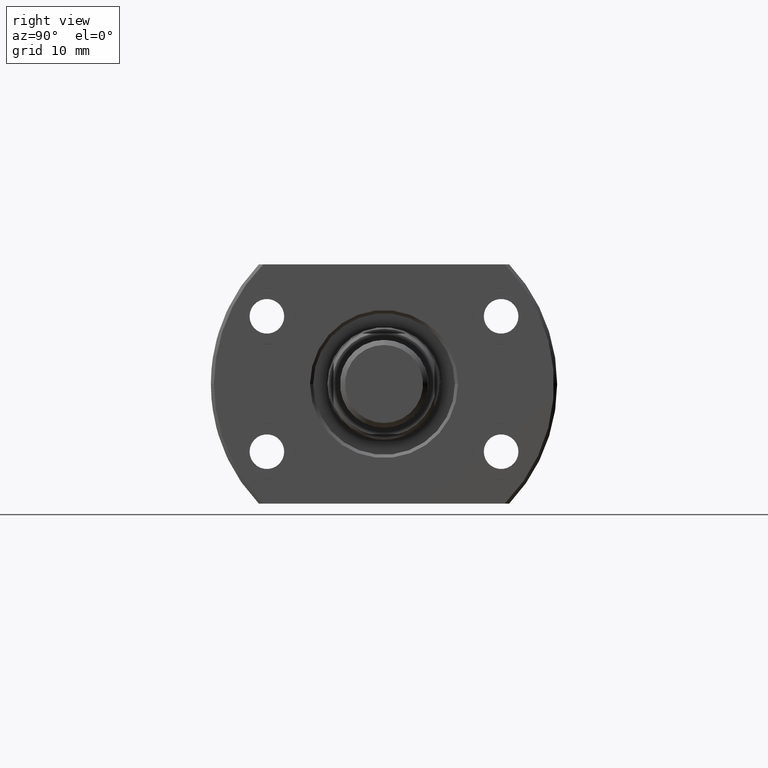
[diagram: clean part render]
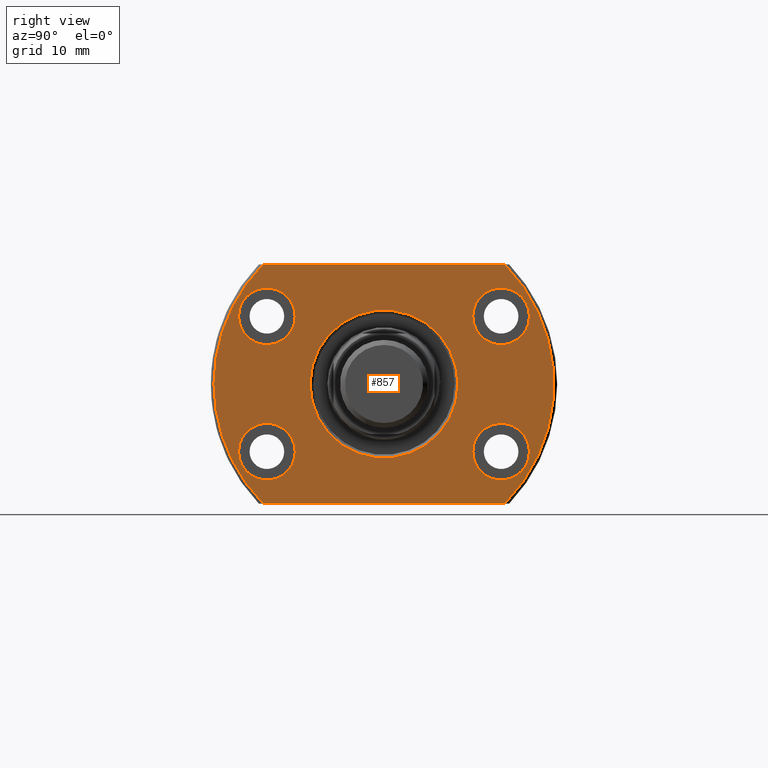
[diagram: same view with one face highlighted and labeled with its STEP entity id]
A machine part, right view. The second image highlights one B-rep face of the part: STEP entity #857.
In plain terms, the highlighted planar face has unit normal (-1, -0, 0).
Its self-contained STEP definition (entity closure, byte-faithful):
#32 = CIRCLE ( 'NONE', #3603, 4.500000000000000888 ) ;
#37 = DIRECTION ( 'NONE',  ( 2.852656382717415620E-14, 1.000000000000000000, 0.000000000000000000 ) ) ;
#46 = AXIS2_PLACEMENT_3D ( 'NONE', #2691, #2375, #2734 ) ;
#199 = EDGE_CURVE ( 'NONE', #1475, #2545, #3670, .T. ) ;
#209 = FACE_OUTER_BOUND ( 'NONE', #599, .T. ) ;
#254 = EDGE_CURVE ( 'NONE', #587, #2266, #32, .T. ) ;
#264 = DIRECTION ( 'NONE',  ( 1.000000000000000000, -2.883293662278287419E-14, -3.155443620884046521E-30 ) ) ;
#310 = DIRECTION ( 'NONE',  ( -1.000000000000000000, -9.242617352055502386E-18, 0.000000000000000000 ) ) ;
#329 = DIRECTION ( 'NONE',  ( 1.000000000000000000, -2.883293662278287419E-14, -3.155443620884046521E-30 ) ) ;
#341 = AXIS2_PLACEMENT_3D ( 'NONE', #3655, #310, #1449 ) ;
#345 = AXIS2_PLACEMENT_3D ( 'NONE', #845, #1117, #860 ) ;
#361 = ORIENTED_EDGE ( 'NONE', *, *, #1987, .T. ) ;
#366 = CARTESIAN_POINT ( 'NONE',  ( 26.50000000000041211, 14.09999999999923403, 10.75000000000000000 ) ) ;
#367 = CARTESIAN_POINT ( 'NONE',  ( 26.50000000000054001, 18.59999999999923403, -10.75000000000000000 ) ) ;
#377 = DIRECTION ( 'NONE',  ( 1.000000000000000000, -2.886466111666351885E-14, 0.000000000000000000 ) ) ;
#491 = FACE_BOUND ( 'NONE', #1496, .T. ) ;
#492 = CARTESIAN_POINT ( 'NONE',  ( 26.49999999999933564, -23.10000000000076881, 10.75000000000000000 ) ) ;
#507 = PLANE ( 'NONE',  #3331 ) ;
#515 = AXIS2_PLACEMENT_3D ( 'NONE', #875, #2005, #3127 ) ;
#530 = AXIS2_PLACEMENT_3D ( 'NONE', #1067, #264, #1777 ) ;
#555 = DIRECTION ( 'NONE',  ( -9.242617352055502386E-18, 1.000000000000000000, -0.000000000000000000 ) ) ;
#587 = VERTEX_POINT ( 'NONE', #1266 ) ;
#599 = EDGE_LOOP ( 'NONE', ( #2806, #361, #2063, #960, #1790 ) ) ;
#636 = VERTEX_POINT ( 'NONE', #2373 ) ;
#645 = CARTESIAN_POINT ( 'NONE',  ( 26.50000000000000355, -19.18332609325086580, -19.00000000000001066 ) ) ;
#704 = CARTESIAN_POINT ( 'NONE',  ( 26.49999999999959499, -14.10000000000076881, -10.75000000000000000 ) ) ;
#736 = EDGE_CURVE ( 'NONE', #1860, #636, #3581, .T. ) ;
#753 = CIRCLE ( 'NONE', #1169, 11.74999999999932498 ) ;
#802 = EDGE_CURVE ( 'NONE', #2266, #587, #3207, .T. ) ;
#845 = CARTESIAN_POINT ( 'NONE',  ( 26.50000000000000355, 2.449293598294708386E-16, 0.000000000000000000 ) ) ;
#850 = CARTESIAN_POINT ( 'NONE',  ( 26.50000000000054001, 18.59999999999923403, 10.75000000000000000 ) ) ;
#857 = ADVANCED_FACE ( 'NONE', ( #2442, #491, #1624, #1884, #2194, #209 ), #507, .F. ) ;
#859 = ORIENTED_EDGE ( 'NONE', *, *, #3091, .F. ) ;
#860 = DIRECTION ( 'NONE',  ( 0.000000000000000000, 1.000000000000000000, 0.000000000000000000 ) ) ;
#867 = CARTESIAN_POINT ( 'NONE',  ( 26.50000000000000355, -11.75000000000071054, 1.438959988998140752E-15 ) ) ;
#869 = EDGE_LOOP ( 'NONE', ( #1387, #1047 ) ) ;
#875 = CARTESIAN_POINT ( 'NONE',  ( 26.50000000000000355, 2.449293598294708386E-16, 0.000000000000000000 ) ) ;
#877 = CIRCLE ( 'NONE', #46, 27.00000000000000000 ) ;
#882 = CARTESIAN_POINT ( 'NONE',  ( 26.50000000000066791, 23.09999999999923403, -10.75000000000000000 ) ) ;
#960 = ORIENTED_EDGE ( 'NONE', *, *, #2918, .T. ) ;
#961 = DIRECTION ( 'NONE',  ( 2.852656382717415620E-14, 1.000000000000000000, 0.000000000000000000 ) ) ;
#965 = DIRECTION ( 'NONE',  ( 2.852656382717415620E-14, 1.000000000000000000, 0.000000000000000000 ) ) ;
#1047 = ORIENTED_EDGE ( 'NONE', *, *, #2256, .T. ) ;
#1049 = DIRECTION ( 'NONE',  ( -1.000000000000000000, -9.242617352055502386E-18, 0.000000000000000000 ) ) ;
#1063 = CARTESIAN_POINT ( 'NONE',  ( 26.50000000000000355, 19.18332609325086580, -19.00000000000001066 ) ) ;
#1067 = CARTESIAN_POINT ( 'NONE',  ( 26.49999999999946354, -18.60000000000076881, 10.75000000000000000 ) ) ;
#1080 = ORIENTED_EDGE ( 'NONE', *, *, #736, .F. ) ;
#1117 = DIRECTION ( 'NONE',  ( 1.000000000000000000, 9.242617352055502386E-18, -0.000000000000000000 ) ) ;
#1169 = AXIS2_PLACEMENT_3D ( 'NONE', #2232, #1049, #2774 ) ;
#1219 = DIRECTION ( 'NONE',  ( 2.852656382717415620E-14, 1.000000000000000000, 0.000000000000000000 ) ) ;
#1248 = EDGE_CURVE ( 'NONE', #2732, #1325, #3306, .T. ) ;
#1266 = CARTESIAN_POINT ( 'NONE',  ( 26.49999999999959499, -14.10000000000076881, 10.75000000000000000 ) ) ;
#1301 = DIRECTION ( 'NONE',  ( 1.000000000000000000, -2.883293662278287419E-14, -3.155443620884046521E-30 ) ) ;
#1309 = AXIS2_PLACEMENT_3D ( 'NONE', #3519, #377, #961 ) ;
#1310 = ORIENTED_EDGE ( 'NONE', *, *, #254, .F. ) ;
#1325 = VERTEX_POINT ( 'NONE', #1604 ) ;
#1343 = CARTESIAN_POINT ( 'NONE',  ( 26.50000000000000355, -27.00000000000000000, 0.000000000000000000 ) ) ;
#1355 = CIRCLE ( 'NONE', #345, 27.00000000000000000 ) ;
#1363 = ORIENTED_EDGE ( 'NONE', *, *, #1248, .F. ) ;
#1387 = ORIENTED_EDGE ( 'NONE', *, *, #3528, .T. ) ;
#1449 = DIRECTION ( 'NONE',  ( 0.000000000000000000, -1.000000000000000000, 0.000000000000000000 ) ) ;
#1475 = VERTEX_POINT ( 'NONE', #3421 ) ;
#1496 = EDGE_LOOP ( 'NONE', ( #1802, #1080 ) ) ;
#1579 = AXIS2_PLACEMENT_3D ( 'NONE', #3052, #1301, #2150 ) ;
#1604 = CARTESIAN_POINT ( 'NONE',  ( 26.49999999999933564, -23.10000000000076881, -10.75000000000000000 ) ) ;
#1624 = FACE_BOUND ( 'NONE', #3302, .T. ) ;
#1627 = DIRECTION ( 'NONE',  ( 2.852656382717415620E-14, 1.000000000000000000, 0.000000000000000000 ) ) ;
#1712 = VECTOR ( 'NONE', #2723, 1000.000000000000000 ) ;
#1777 = DIRECTION ( 'NONE',  ( 2.852656382717415620E-14, 1.000000000000000000, 0.000000000000000000 ) ) ;
#1790 = ORIENTED_EDGE ( 'NONE', *, *, #3041, .T. ) ;
#1802 = ORIENTED_EDGE ( 'NONE', *, *, #2274, .F. ) ;
#1854 = CARTESIAN_POINT ( 'NONE',  ( 26.50000000000000355, 19.88089535207168623, 19.00000000000001066 ) ) ;
#1860 = VERTEX_POINT ( 'NONE', #366 ) ;
#1884 = FACE_BOUND ( 'NONE', #3186, .T. ) ;
#1925 = ORIENTED_EDGE ( 'NONE', *, *, #3053, .F. ) ;
#1944 = ORIENTED_EDGE ( 'NONE', *, *, #802, .F. ) ;
#1976 = VERTEX_POINT ( 'NONE', #2570 ) ;
#1987 = EDGE_CURVE ( 'NONE', #3084, #2959, #877, .T. ) ;
#1996 = CIRCLE ( 'NONE', #515, 27.00000000000000000 ) ;
#2005 = DIRECTION ( 'NONE',  ( 1.000000000000000000, 9.242617352055502386E-18, -0.000000000000000000 ) ) ;
#2063 = ORIENTED_EDGE ( 'NONE', *, *, #2612, .T. ) ;
#2088 = DIRECTION ( 'NONE',  ( 1.000000000000000000, -2.883293662278287419E-14, -3.155443620884046521E-30 ) ) ;
#2107 = CIRCLE ( 'NONE', #2585, 4.500000000000000888 ) ;
#2150 = DIRECTION ( 'NONE',  ( 2.852656382717415620E-14, 1.000000000000000000, 0.000000000000000000 ) ) ;
#2194 = FACE_BOUND ( 'NONE', #2270, .T. ) ;
#2232 = CARTESIAN_POINT ( 'NONE',  ( 26.50000000000000355, -7.069515144664183387E-13, 0.000000000000000000 ) ) ;
#2256 = EDGE_CURVE ( 'NONE', #2318, #1976, #753, .T. ) ;
#2266 = VERTEX_POINT ( 'NONE', #492 ) ;
#2270 = EDGE_LOOP ( 'NONE', ( #859, #3036 ) ) ;
#2274 = EDGE_CURVE ( 'NONE', #636, #1860, #3621, .T. ) ;
#2288 = AXIS2_PLACEMENT_3D ( 'NONE', #367, #329, #1219 ) ;
#2300 = CIRCLE ( 'NONE', #2288, 4.500000000000000888 ) ;
#2318 = VERTEX_POINT ( 'NONE', #867 ) ;
#2373 = CARTESIAN_POINT ( 'NONE',  ( 26.50000000000066791, 23.09999999999923403, 10.75000000000000000 ) ) ;
#2375 = DIRECTION ( 'NONE',  ( 1.000000000000000000, 9.242617352055502386E-18, -0.000000000000000000 ) ) ;
#2431 = VERTEX_POINT ( 'NONE', #1063 ) ;
#2442 = FACE_BOUND ( 'NONE', #869, .T. ) ;
#2492 = CARTESIAN_POINT ( 'NONE',  ( 26.50000000000000355, -27.00000000000000000, -19.00000000000001066 ) ) ;
#2545 = VERTEX_POINT ( 'NONE', #882 ) ;
#2570 = CARTESIAN_POINT ( 'NONE',  ( 26.50000000000000355, 11.74999999999861622, 0.000000000000000000 ) ) ;
#2572 = CARTESIAN_POINT ( 'NONE',  ( 26.49999999999946354, -18.60000000000076881, -10.75000000000000000 ) ) ;
#2585 = AXIS2_PLACEMENT_3D ( 'NONE', #2572, #3092, #37 ) ;
#2612 = EDGE_CURVE ( 'NONE', #2959, #3631, #1355, .T. ) ;
#2691 = CARTESIAN_POINT ( 'NONE',  ( 26.50000000000000355, 2.449293598294708386E-16, 0.000000000000000000 ) ) ;
#2720 = CARTESIAN_POINT ( 'NONE',  ( 26.50000000000054001, 18.59999999999923403, -10.75000000000000000 ) ) ;
#2723 = DIRECTION ( 'NONE',  ( -0.000000000000000000, 1.000000000000000000, 0.000000000000000000 ) ) ;
#2732 = VERTEX_POINT ( 'NONE', #704 ) ;
#2734 = DIRECTION ( 'NONE',  ( 0.000000000000000000, 1.000000000000000000, 0.000000000000000000 ) ) ;
#2752 = AXIS2_PLACEMENT_3D ( 'NONE', #2720, #3030, #3236 ) ;
#2774 = DIRECTION ( 'NONE',  ( 0.000000000000000000, -1.000000000000000000, 0.000000000000000000 ) ) ;
#2803 = EDGE_CURVE ( 'NONE', #3084, #3573, #3050, .T. ) ;
#2806 = ORIENTED_EDGE ( 'NONE', *, *, #2803, .F. ) ;
#2833 = AXIS2_PLACEMENT_3D ( 'NONE', #850, #3117, #1627 ) ;
#2918 = EDGE_CURVE ( 'NONE', #3631, #2431, #3108, .T. ) ;
#2959 = VERTEX_POINT ( 'NONE', #3433 ) ;
#3026 = DIRECTION ( 'NONE',  ( -1.000000000000000000, -9.242617352055502386E-18, 0.000000000000000000 ) ) ;
#3030 = DIRECTION ( 'NONE',  ( 1.000000000000000000, -2.883293662278287419E-14, -3.155443620884046521E-30 ) ) ;
#3036 = ORIENTED_EDGE ( 'NONE', *, *, #199, .F. ) ;
#3041 = EDGE_CURVE ( 'NONE', #2431, #3573, #1996, .T. ) ;
#3050 = LINE ( 'NONE', #1854, #1712 ) ;
#3052 = CARTESIAN_POINT ( 'NONE',  ( 26.49999999999946354, -18.60000000000076881, -10.75000000000000000 ) ) ;
#3053 = EDGE_CURVE ( 'NONE', #1325, #2732, #2107, .T. ) ;
#3073 = CIRCLE ( 'NONE', #341, 11.74999999999932498 ) ;
#3084 = VERTEX_POINT ( 'NONE', #3166 ) ;
#3091 = EDGE_CURVE ( 'NONE', #2545, #1475, #2300, .T. ) ;
#3092 = DIRECTION ( 'NONE',  ( 1.000000000000000000, -2.883293662278287419E-14, -3.155443620884046521E-30 ) ) ;
#3108 = LINE ( 'NONE', #2492, #3134 ) ;
#3117 = DIRECTION ( 'NONE',  ( 1.000000000000000000, -2.886466111666351885E-14, 0.000000000000000000 ) ) ;
#3127 = DIRECTION ( 'NONE',  ( 0.000000000000000000, 1.000000000000000000, 0.000000000000000000 ) ) ;
#3134 = VECTOR ( 'NONE', #555, 1000.000000000000000 ) ;
#3163 = CARTESIAN_POINT ( 'NONE',  ( 26.50000000000000355, 19.18332609325086935, 19.00000000000000711 ) ) ;
#3166 = CARTESIAN_POINT ( 'NONE',  ( 26.50000000000000355, -19.18332609325086224, 19.00000000000000711 ) ) ;
#3186 = EDGE_LOOP ( 'NONE', ( #1363, #1925 ) ) ;
#3207 = CIRCLE ( 'NONE', #530, 4.500000000000000888 ) ;
#3236 = DIRECTION ( 'NONE',  ( 2.852656382717415620E-14, 1.000000000000000000, 0.000000000000000000 ) ) ;
#3302 = EDGE_LOOP ( 'NONE', ( #1310, #1944 ) ) ;
#3306 = CIRCLE ( 'NONE', #1579, 4.500000000000000888 ) ;
#3331 = AXIS2_PLACEMENT_3D ( 'NONE', #1343, #3026, #3608 ) ;
#3421 = CARTESIAN_POINT ( 'NONE',  ( 26.50000000000041211, 14.09999999999923403, -10.75000000000000000 ) ) ;
#3433 = CARTESIAN_POINT ( 'NONE',  ( 26.50000000000000355, -27.00000000000000355, 0.000000000000000000 ) ) ;
#3519 = CARTESIAN_POINT ( 'NONE',  ( 26.50000000000054001, 18.59999999999923403, 10.75000000000000000 ) ) ;
#3523 = CARTESIAN_POINT ( 'NONE',  ( 26.49999999999946354, -18.60000000000076881, 10.75000000000000000 ) ) ;
#3528 = EDGE_CURVE ( 'NONE', #1976, #2318, #3073, .T. ) ;
#3573 = VERTEX_POINT ( 'NONE', #3163 ) ;
#3581 = CIRCLE ( 'NONE', #1309, 4.500000000000000888 ) ;
#3603 = AXIS2_PLACEMENT_3D ( 'NONE', #3523, #2088, #965 ) ;
#3608 = DIRECTION ( 'NONE',  ( 9.242617352055502386E-18, -1.000000000000000000, 0.000000000000000000 ) ) ;
#3621 = CIRCLE ( 'NONE', #2833, 4.500000000000000888 ) ;
#3631 = VERTEX_POINT ( 'NONE', #645 ) ;
#3655 = CARTESIAN_POINT ( 'NONE',  ( 26.50000000000000355, -7.069515144664183387E-13, 0.000000000000000000 ) ) ;
#3670 = CIRCLE ( 'NONE', #2752, 4.500000000000000888 ) ;